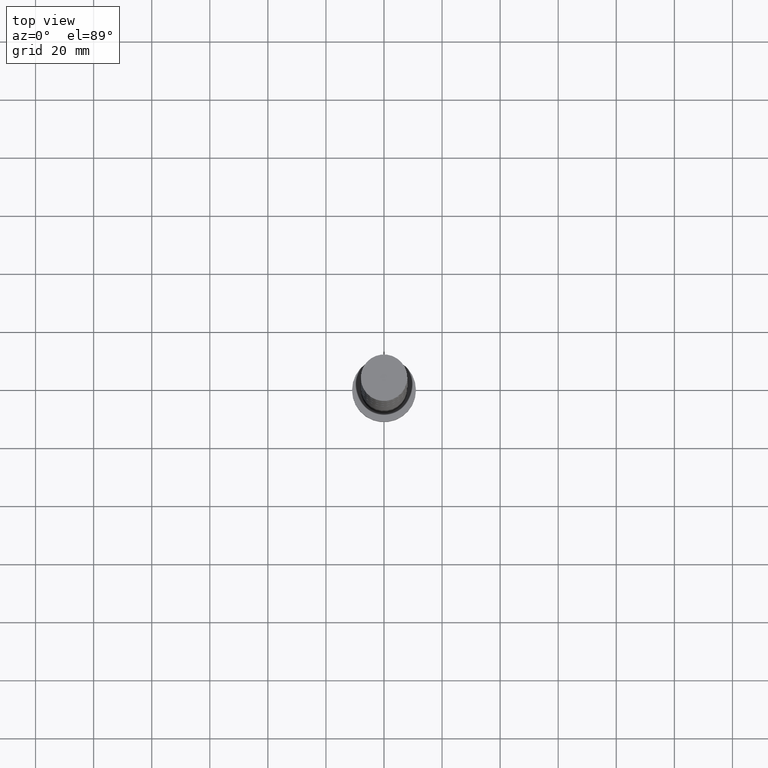
[diagram: clean part render]
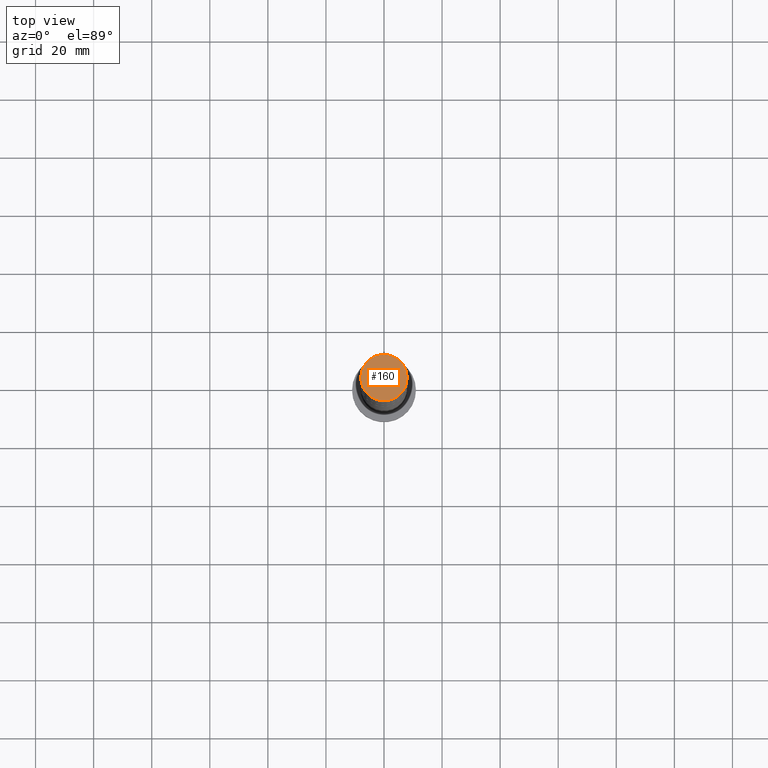
[diagram: same view with one face highlighted and labeled with its STEP entity id]
A machine part, top view. The second image highlights one B-rep face of the part: STEP entity #160.
In plain terms, the highlighted planar face has unit normal (0, 0, 1).
Its self-contained STEP definition (entity closure, byte-faithful):
#38 = PLANE ( 'NONE',  #137 ) ;
#70 = DIRECTION ( 'NONE',  ( 1.000000000000000000, 0.000000000000000000, 0.000000000000000000 ) ) ;
#133 = ORIENTED_EDGE ( 'NONE', *, *, #1078, .T. ) ;
#137 = AXIS2_PLACEMENT_3D ( 'NONE', #378, #1080, #239 ) ;
#160 = ADVANCED_FACE ( 'NONE', ( #766 ), #38, .T. ) ;
#226 = CIRCLE ( 'NONE', #1477, 8.000000000000000000 ) ;
#239 = DIRECTION ( 'NONE',  ( 1.000000000000000000, 0.000000000000000000, -0.000000000000000000 ) ) ;
#267 = CARTESIAN_POINT ( 'NONE',  ( 8.000000000000000000, 9.797174393178825657E-16, 250.0000000000000000 ) ) ;
#356 = EDGE_CURVE ( 'NONE', #605, #1270, #226, .T. ) ;
#378 = CARTESIAN_POINT ( 'NONE',  ( 0.000000000000000000, 0.000000000000000000, 250.0000000000000000 ) ) ;
#605 = VERTEX_POINT ( 'NONE', #1565 ) ;
#766 = FACE_OUTER_BOUND ( 'NONE', #1276, .T. ) ;
#945 = CIRCLE ( 'NONE', #1478, 8.000000000000000000 ) ;
#995 = ORIENTED_EDGE ( 'NONE', *, *, #356, .T. ) ;
#1078 = EDGE_CURVE ( 'NONE', #1270, #605, #945, .T. ) ;
#1080 = DIRECTION ( 'NONE',  ( 0.000000000000000000, 0.000000000000000000, 1.000000000000000000 ) ) ;
#1107 = DIRECTION ( 'NONE',  ( 1.000000000000000000, 0.000000000000000000, 0.000000000000000000 ) ) ;
#1270 = VERTEX_POINT ( 'NONE', #267 ) ;
#1276 = EDGE_LOOP ( 'NONE', ( #995, #133 ) ) ;
#1294 = DIRECTION ( 'NONE',  ( 0.000000000000000000, 0.000000000000000000, 1.000000000000000000 ) ) ;
#1357 = CARTESIAN_POINT ( 'NONE',  ( 0.000000000000000000, 0.000000000000000000, 250.0000000000000000 ) ) ;
#1425 = CARTESIAN_POINT ( 'NONE',  ( 0.000000000000000000, 0.000000000000000000, 250.0000000000000000 ) ) ;
#1477 = AXIS2_PLACEMENT_3D ( 'NONE', #1425, #1294, #1107 ) ;
#1478 = AXIS2_PLACEMENT_3D ( 'NONE', #1357, #1507, #70 ) ;
#1507 = DIRECTION ( 'NONE',  ( 0.000000000000000000, 0.000000000000000000, 1.000000000000000000 ) ) ;
#1565 = CARTESIAN_POINT ( 'NONE',  ( -8.000000000000000000, 0.000000000000000000, 250.0000000000000000 ) ) ;